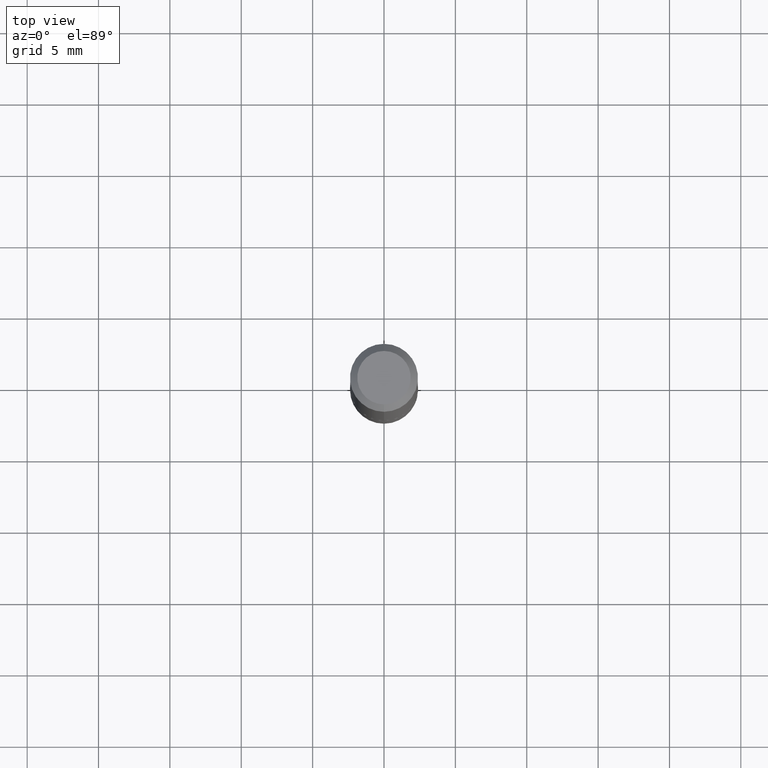
[diagram: clean part render]
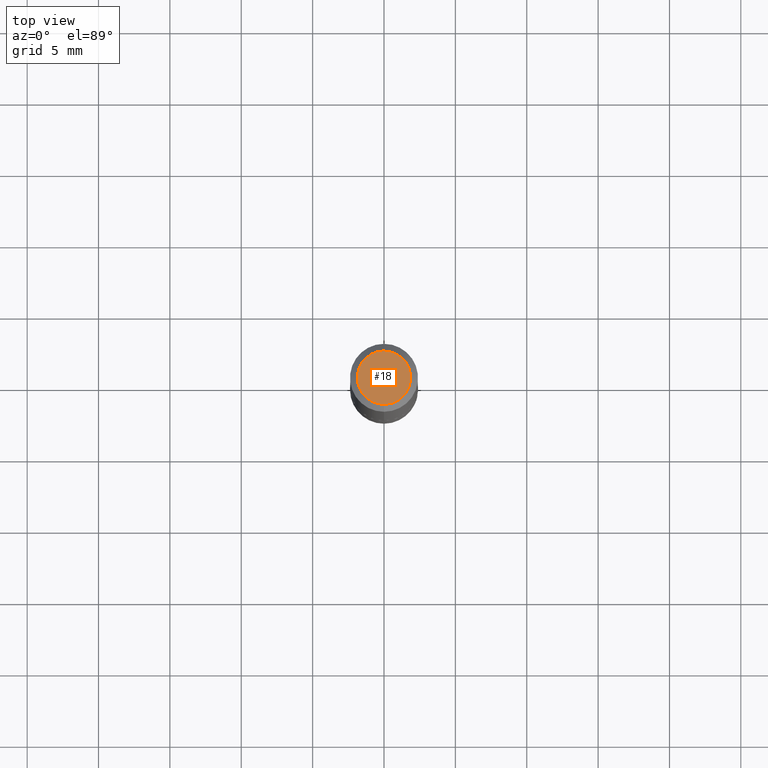
[diagram: same view with one face highlighted and labeled with its STEP entity id]
A machine part, top view. The second image highlights one B-rep face of the part: STEP entity #18.
In plain terms, the highlighted planar face has unit normal (0, -0, -1).
Its self-contained STEP definition (entity closure, byte-faithful):
#5 = FACE_OUTER_BOUND ( 'NONE', #193, .T. ) ;
#13 = AXIS2_PLACEMENT_3D ( 'NONE', #44, #72, #200 ) ;
#18 = ADVANCED_FACE ( 'NONE', ( #5 ), #230, .F. ) ;
#26 = VERTEX_POINT ( 'NONE', #41 ) ;
#28 = AXIS2_PLACEMENT_3D ( 'NONE', #219, #311, #62 ) ;
#41 = CARTESIAN_POINT ( 'NONE',  ( 5.848231242562252906E-16, 0.07375000000000007938, -3.087188986208872011E-16 ) ) ;
#44 = CARTESIAN_POINT ( 'NONE',  ( 5.149934974793626827E-16, 0.07375000000000007938, -2.830775552744993900E-16 ) ) ;
#62 = DIRECTION ( 'NONE',  ( -6.982962677686265922E-15, -1.000000000000000000, 3.490660500720152417E-15 ) ) ;
#72 = DIRECTION ( 'NONE',  ( 2.446041994382864894E-29, -3.490660500720152022E-15, -1.000000000000000000 ) ) ;
#141 = ORIENTED_EDGE ( 'NONE', *, *, #165, .T. ) ;
#165 = EDGE_CURVE ( 'NONE', #26, #175, #349, .T. ) ;
#175 = VERTEX_POINT ( 'NONE', #394 ) ;
#193 = EDGE_LOOP ( 'NONE', ( #141, #204 ) ) ;
#200 = DIRECTION ( 'NONE',  ( 6.982962677686265922E-15, 1.000000000000000000, -3.490660500720152022E-15 ) ) ;
#204 = ORIENTED_EDGE ( 'NONE', *, *, #241, .T. ) ;
#219 = CARTESIAN_POINT ( 'NONE',  ( 1.254396052353086315E-45, -1.790104488092790553E-31, -5.128268669277567764E-17 ) ) ;
#230 = PLANE ( 'NONE',  #13 ) ;
#241 = EDGE_CURVE ( 'NONE', #175, #26, #390, .T. ) ;
#274 = DIRECTION ( 'NONE',  ( -2.446041994382864894E-29, 3.490660500720152417E-15, 1.000000000000000000 ) ) ;
#311 = DIRECTION ( 'NONE',  ( -2.446041994382864894E-29, 3.490660500720152417E-15, 1.000000000000000000 ) ) ;
#349 = CIRCLE ( 'NONE', #357, 0.07375000000000007938 ) ;
#357 = AXIS2_PLACEMENT_3D ( 'NONE', #361, #274, #404 ) ;
#361 = CARTESIAN_POINT ( 'NONE',  ( 1.254396052353086315E-45, -1.790104488092790553E-31, -5.128268669277567764E-17 ) ) ;
#390 = CIRCLE ( 'NONE', #28, 0.07375000000000007938 ) ;
#394 = CARTESIAN_POINT ( 'NONE',  ( -5.745667073133657526E-16, -0.07375000000000007938, 2.061535252353357842E-16 ) ) ;
#404 = DIRECTION ( 'NONE',  ( -6.982962677686265922E-15, -1.000000000000000000, 3.490660500720152417E-15 ) ) ;